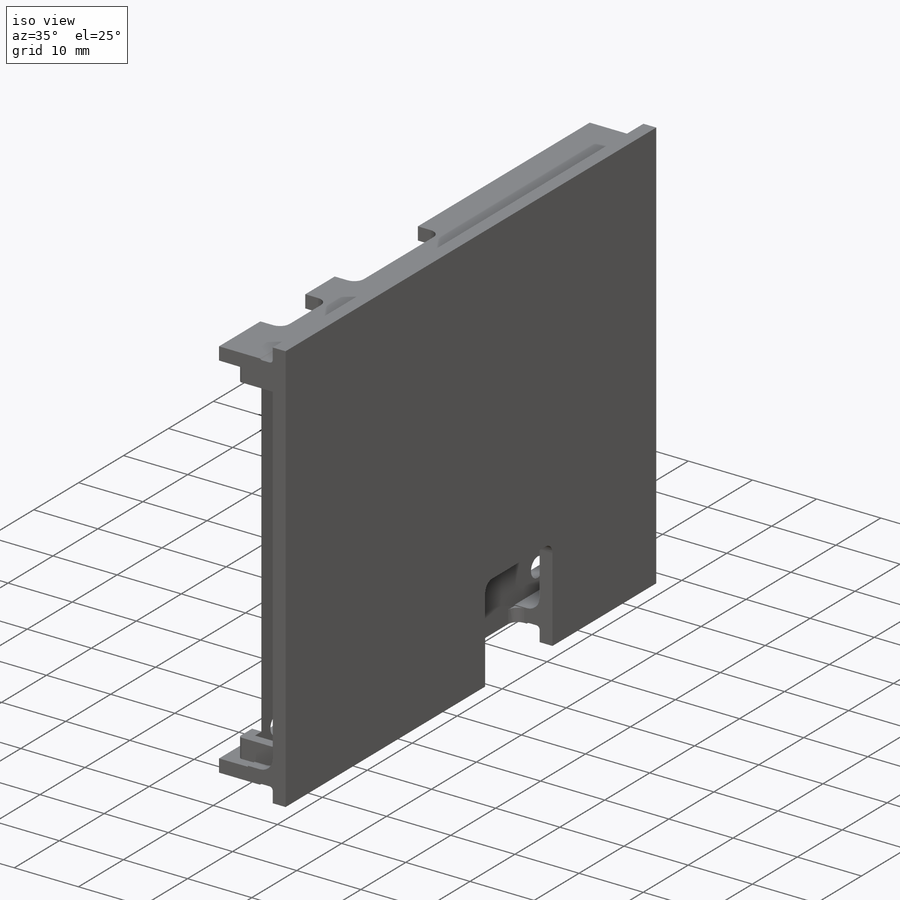
[diagram: iso view]
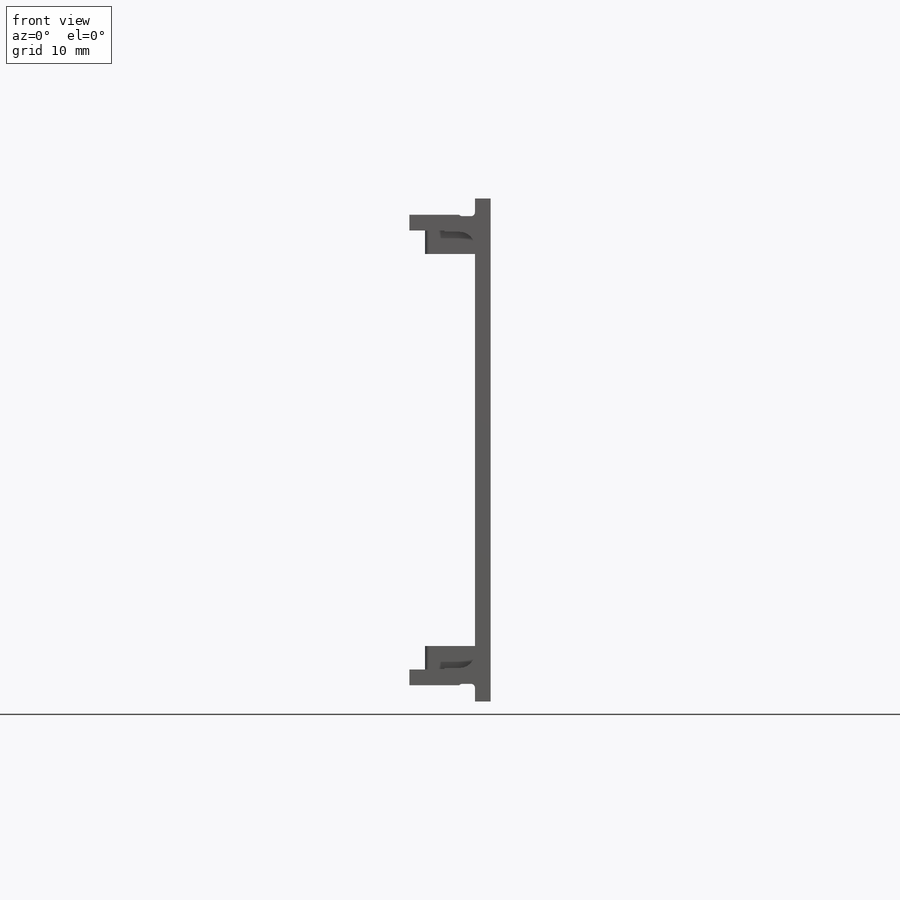
[diagram: front view]
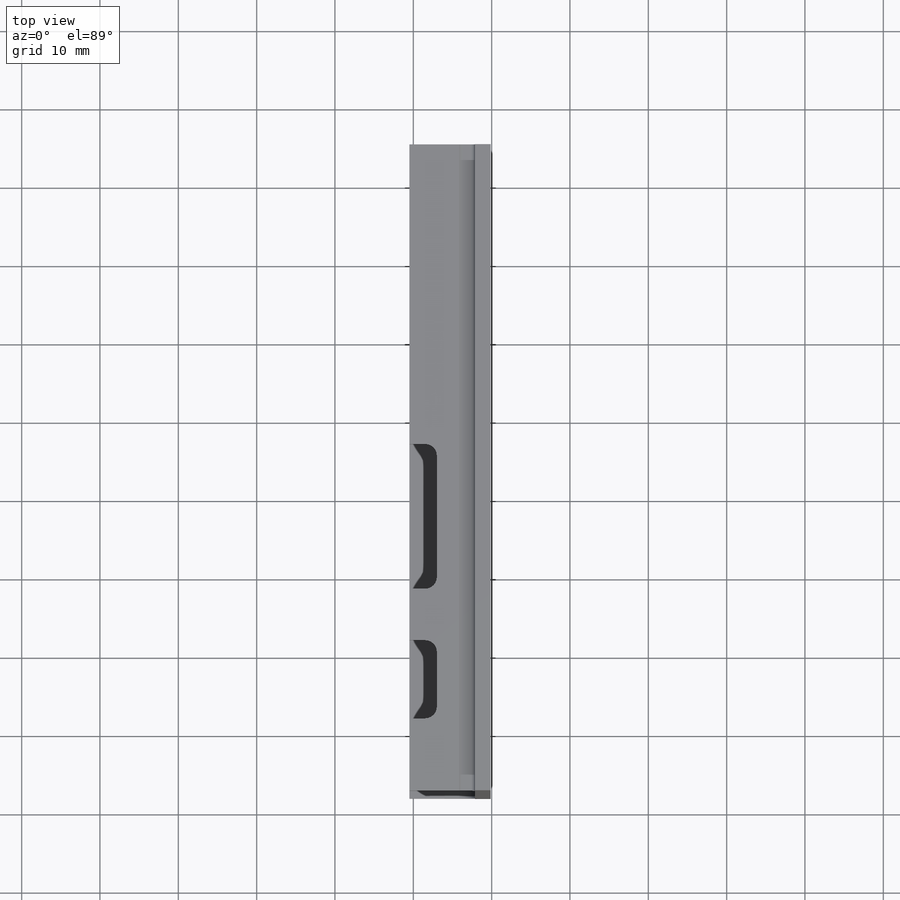
[diagram: top view]
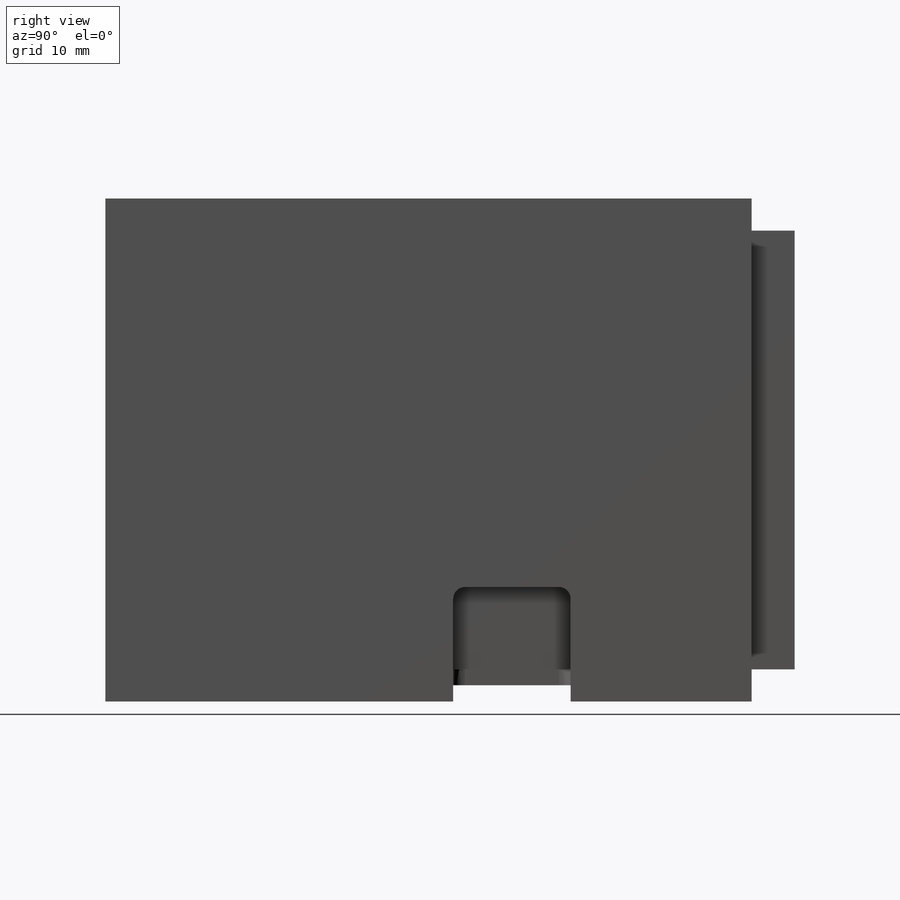
[diagram: right view]
SOLIDWORKS PART (.sldprt)
format: sldprt  version: not decoded by parser v0  size: 431,616 bytes
history: native  units: mm
features: sketch x5, fillet x4, surface_op x3, extrude x3, plane x2, mirror x2, cut_extrude x2, material x1 (+12 scaffold rows collapsed)
feature tree (34):
  scaffold x12  (default folders/planes/origin — collapsed)
  material  "Material <not specified>"
  surface_op  "Surface-Offset2"
  surface_op  "Surface-Offset3"
  surface_op  "Surface-Offset4"
  plane  "Plane2"  Offset=0mm
  sketch  "Sketch1"  dims[D1=2.0mm D2=2.25mm D3=2.0mm D4=2.0mm D5=2.0mm D6=2.0mm D7=0.0mm D8=3.5mm]
  extrude  "Boss-Extrude1"  Depth=82.5mm
  mirror  "Mirror1"
  sketch  "Sketch2"  dims[D1=10.0mm D2=18.5mm D3=15.0mm]
  cut_extrude  "Cut-Extrude1"  [1 undecoded]
  fillet  "Fillet2"  Radius=2mm
  fillet  "Fillet3"  Radius=0.5mm
  cut_extrude  "Cut-Extrude2"  [1 undecoded]
  sketch  "Sketch2<3>"  dims[D19=17.5mm]
  fillet  "Fillet1"  Radius=1.5mm
  sketch  "Sketch3"  dims[D1=3.0mm D2=1.5mm]
  plane  "Plane1"  Offset=1.5mm
  extrude  "Boss-Extrude3"  Depth=3mm
  extrude  "Boss-Extrude4"  [1 undecoded]
  sketch  "Sketch3<6>"
  fillet  "Fillet5"  Radius=0.5mm
  mirror  "Mirror4"
decode coverage: 10 of 19 modeling features carry decoded parameters
note: 3 parameter values undecoded
summary: no parameter record found for 3 features
note: suppression state not decoded; provenance and decode notes live in map.json
